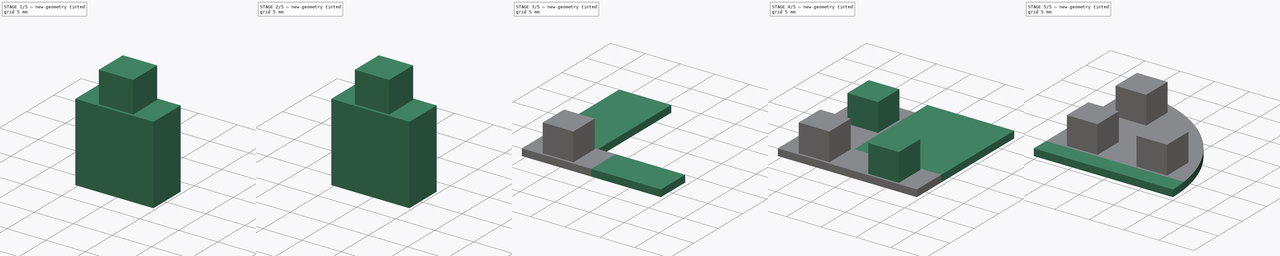
[diagram: build sequence overview — one tinted view per stage of 5, left to right]
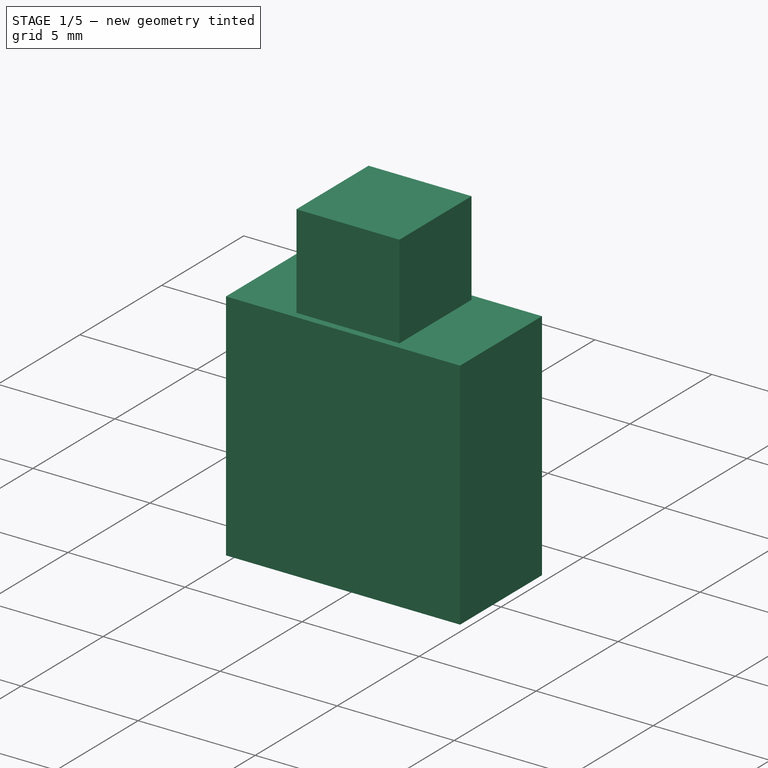
[diagram: stage 1 of 5 — iso view after this stage's code; geometry added in this stage tinted green]
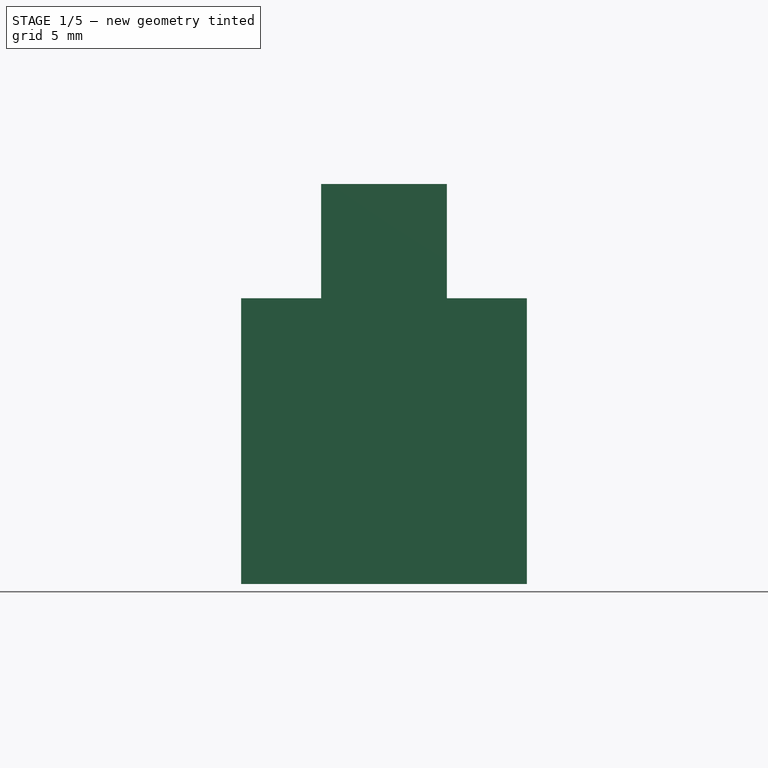
[diagram: stage 1 of 5 — front view after this stage's code; geometry added in this stage tinted green]
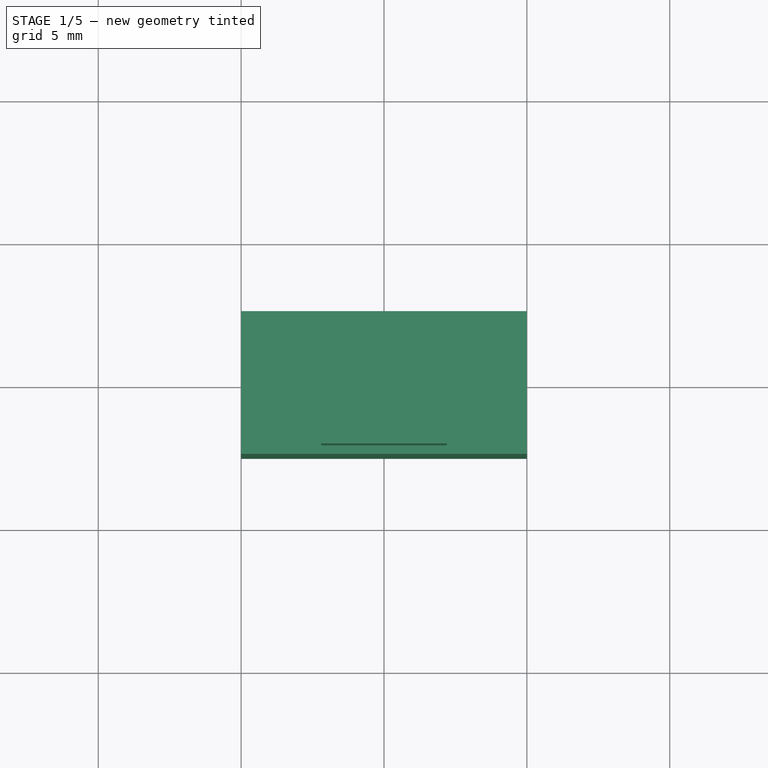
[diagram: stage 1 of 5 — top view after this stage's code; geometry added in this stage tinted green]
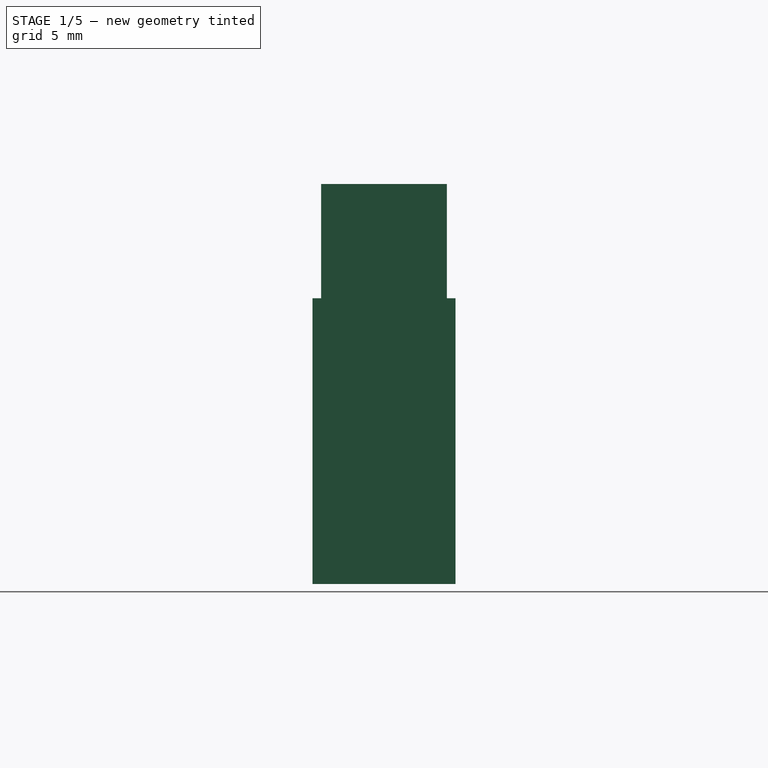
[diagram: stage 1 of 5 — right view after this stage's code; geometry added in this stage tinted green]
FCSTD DOCUMENT  (FreeCAD 0.18.4R)
Label: door-v1
License: All rights reserved
LicenseURL: http://en.wikipedia.org/wiki/All_rights_reserved
objects: PartDesign::Pad×11, PartDesign::Pocket×11, Sketcher::SketchObject×5, Part::Box×1, PartDesign::FeatureBase×1, PartDesign::Body×1
note: 52 computed .brp shape members not serialized (recipe doc carries the construction recipe); baked Part::Feature solids carry a one-line shape summary decoded from their .brp

FEATURE [Part::Box] Box  label="Cube"
  AttacherType = Attacher::AttachEngine3D
  Height = 10
  Length = 10
  Width = 10
FEATURE [PartDesign::FeatureBase] BaseFeature
  BaseFeature = -> Box
FEATURE [Sketcher::SketchObject] Sketch
  MapMode = 5
  Placement = pos=(0,0,10) rot=(0,0,1;0rad)
  Support = -> [BaseFeature]
  sketch-geometry (4):
    g0: LineSegment StartX=2.8 StartY=2.8 StartZ=0 EndX=7.2 EndY=2.8 EndZ=0
    g1: LineSegment StartX=7.2 StartY=2.8 StartZ=0 EndX=7.2 EndY=7.2 EndZ=0
    g2: LineSegment StartX=7.2 StartY=7.2 StartZ=0 EndX=2.8 EndY=7.2 EndZ=0
    g3: LineSegment StartX=2.8 StartY=7.2 StartZ=0 EndX=2.8 EndY=2.8 EndZ=0
  constraints (12):
    c: Coincident(g0,g1)
    c: Coincident(g1,g2)
    c: Coincident(g2,g3)
    c: Coincident(g3,g0)
    c: Horizontal(g0)
    c: Horizontal(g2)
    c: Vertical(g1)
    c: Vertical(g3)
    c: DistanceX(g2,g2) = 4.4
    c: DistanceY(g3,g3) = 4.4
    c: DistanceX(g-1,g0) = 2.8
    c: DistanceY(g-1,g0) = 2.8
FEATURE [PartDesign::Pad] Pad
  BaseFeature = -> BaseFeature
  Length = 4
  Length2 = 100
  Profile = -> Sketch
  Type = 0
FEATURE [PartDesign::Pocket] Pocket
  BaseFeature = -> Pad
  Length = 2.5
  Length2 = 100
  Profile = -> Pad [Face4]
  Type = 0
FEATURE [PartDesign::Pocket] Pocket001
  BaseFeature = -> Pocket
  Length = 2.5
  Length2 = 100
  Profile = -> Pocket [Face5]
  Type = 0
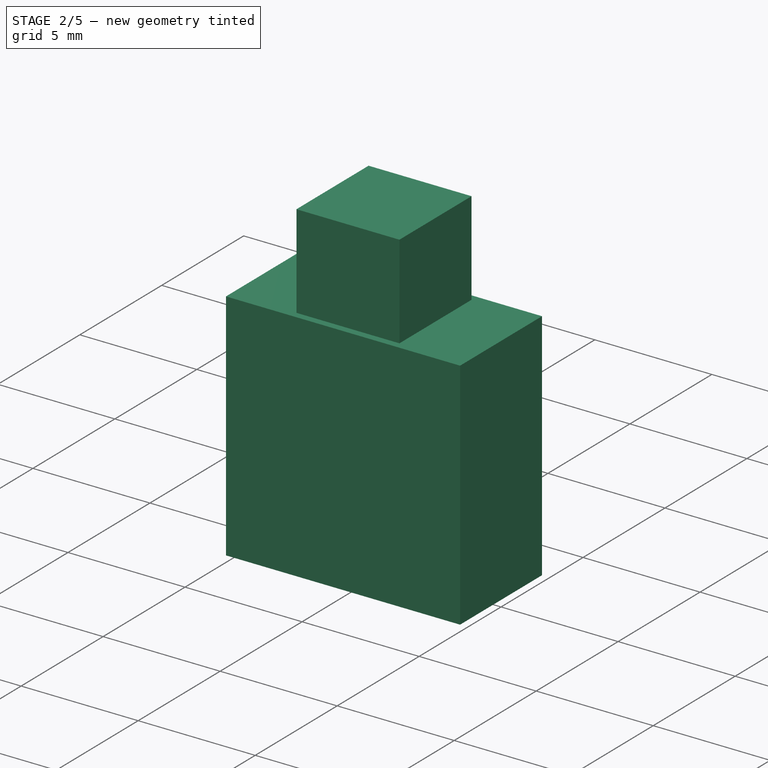
[diagram: stage 2 of 5 — iso view after this stage's code; geometry added in this stage tinted green]
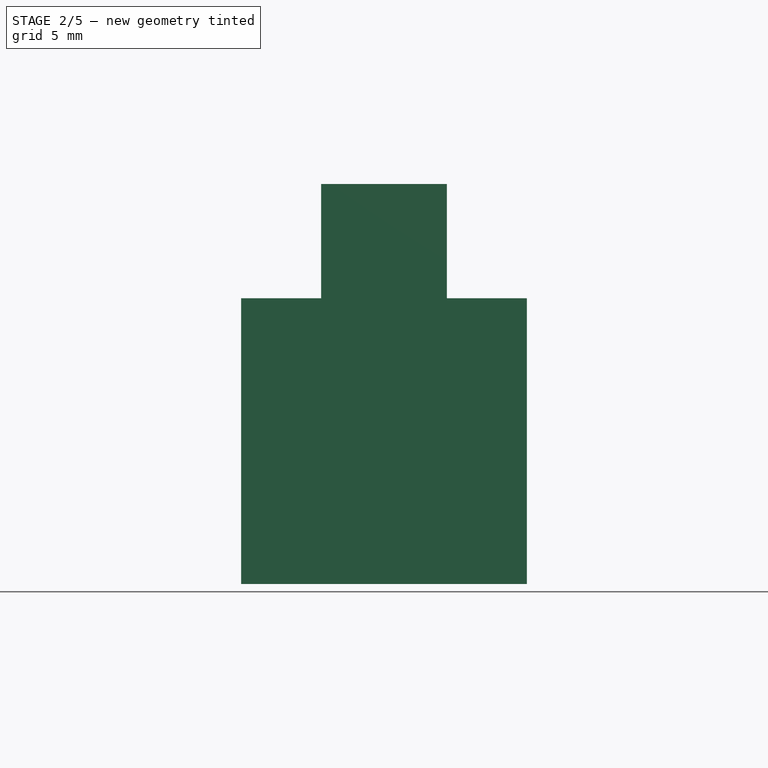
[diagram: stage 2 of 5 — front view after this stage's code; geometry added in this stage tinted green]
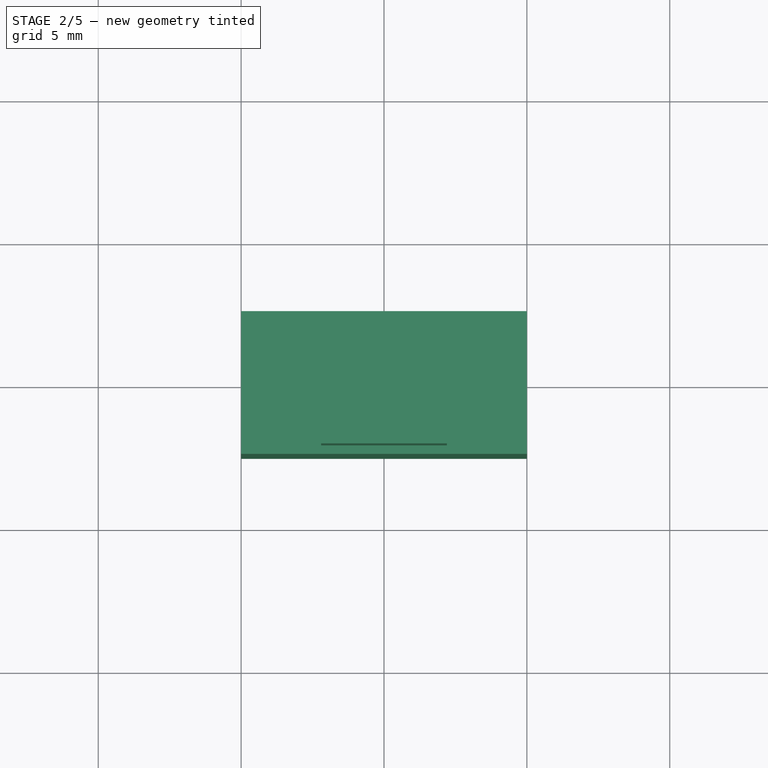
[diagram: stage 2 of 5 — top view after this stage's code; geometry added in this stage tinted green]
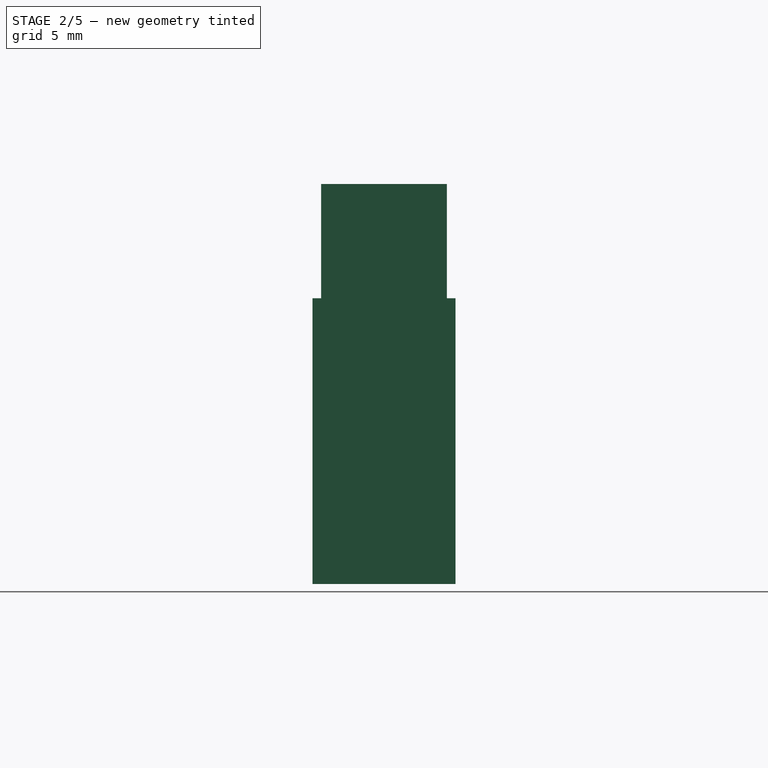
[diagram: stage 2 of 5 — right view after this stage's code; geometry added in this stage tinted green]
FEATURE [Sketcher::SketchObject] Sketch001
  ExternalGeometry = -> [Pocket001]
  MapMode = 5
  Placement = pos=(0,7.5,0) rot=(0,0.707107,0.707107;3.14159rad)
  Support = -> [Pocket001]
  sketch-geometry (4):
    g0: LineSegment StartX=-7.5 StartY=10 StartZ=0 EndX=-2.5 EndY=10 EndZ=0
    g1: LineSegment StartX=-2.5 StartY=10 StartZ=0 EndX=-2.5 EndY=0 EndZ=0
    g2: LineSegment StartX=-2.5 StartY=0 StartZ=0 EndX=-7.5 EndY=0 EndZ=0
    g3: LineSegment StartX=-7.5 StartY=0 StartZ=0 EndX=-7.5 EndY=10 EndZ=0
  constraints (12):
    c: Coincident(g0,g1)
    c: Coincident(g1,g2)
    c: Coincident(g2,g3)
    c: Coincident(g3,g0)
    c: Horizontal(g0)
    c: Horizontal(g2)
    c: Vertical(g1)
    c: Vertical(g3)
    c: DistanceX(g0,g0) = 5
    c: DistanceX(g-3,g0) = 2.5
    c: DistanceY(g0,g-3) = 0
    c: DistanceY(g-4,g2) = 0
FEATURE [PartDesign::Pad] Pad001
  BaseFeature = -> Pocket001
  Length = 10
  Length2 = 100
  Profile = -> Sketch001
  Type = 0
FEATURE [Sketcher::SketchObject] Sketch002
  ExternalGeometry = -> [Pad001]
  MapMode = 5
  Placement = pos=(0,2.2e-15,10) rot=(0,0,1;0rad)
  Support = -> [Pad001]
  sketch-geometry (4):
    g0: LineSegment StartX=2.8 StartY=14.7 StartZ=0 EndX=7.2 EndY=14.7 EndZ=0
    g1: LineSegment StartX=7.2 StartY=14.7 StartZ=0 EndX=7.2 EndY=10.3 EndZ=0
    g2: LineSegment StartX=7.2 StartY=10.3 StartZ=0 EndX=2.8 EndY=10.3 EndZ=0
    g3: LineSegment StartX=2.8 StartY=10.3 StartZ=0 EndX=2.8 EndY=14.7 EndZ=0
  constraints (12):
    c: Coincident(g0,g1)
    c: Coincident(g1,g2)
    c: Coincident(g2,g3)
    c: Coincident(g3,g0)
    c: Horizontal(g0)
    c: Horizontal(g2)
    c: Vertical(g1)
    c: Vertical(g3)
    c: DistanceX(g-3,g0) = 0.3
    c: DistanceX(g0,g-3) = 0.3
    c: DistanceY(g3,g3) = 4.4
    c: DistanceY(g0,g-3) = 2.8
FEATURE [PartDesign::Pad] Pad002
  BaseFeature = -> Pad001
  Length = 4
  Length2 = 100
  Profile = -> Sketch002
  Type = 0
FEATURE [PartDesign::Pocket] Pocket002
  BaseFeature = -> Pad002
  Length = 5
  Length2 = 100
  Profile = -> Pad002 [Face22]
  Type = 0
FEATURE [PartDesign::Pocket] Pocket003
  BaseFeature = -> Pocket002
  Length = 7.5
  Length2 = 100
  Profile = -> Pocket002 [Face16]
  Type = 0
FEATURE [PartDesign::Pocket] Pocket004
  BaseFeature = -> Pocket003
  Length = 2.5
  Length2 = 100
  Profile = -> Pocket003 [Face15]
  Type = 0
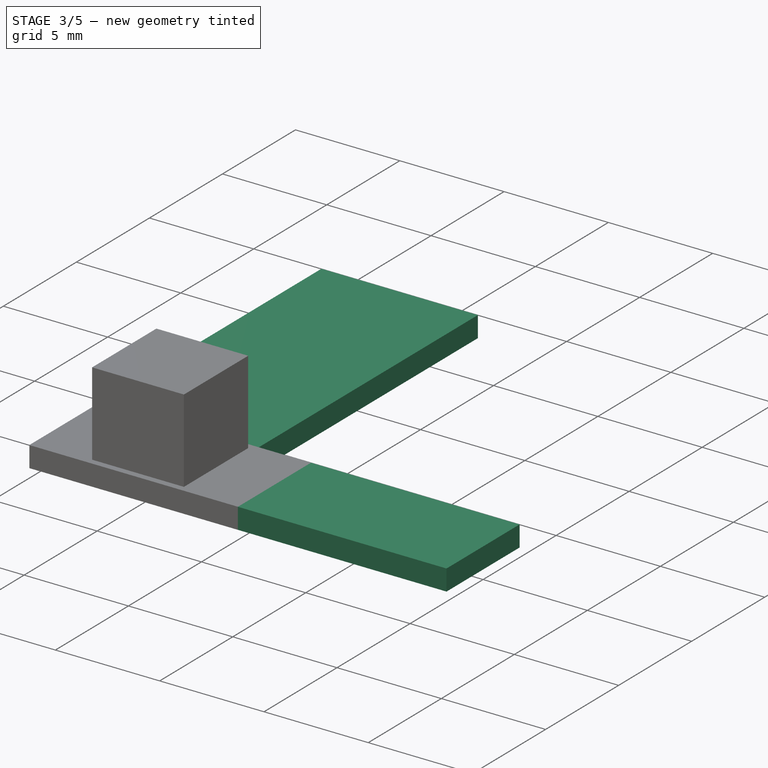
[diagram: stage 3 of 5 — iso view after this stage's code; geometry added in this stage tinted green]
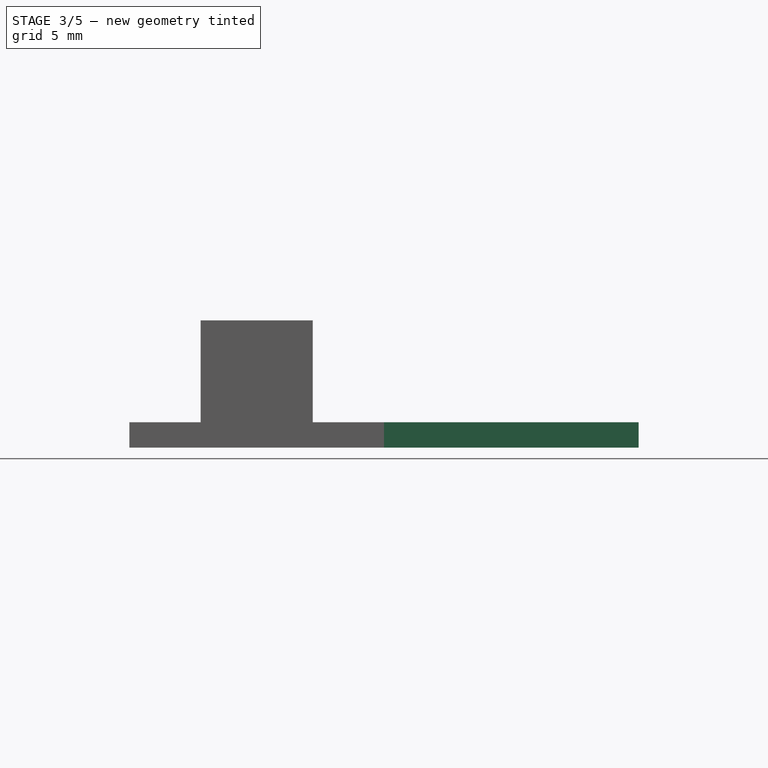
[diagram: stage 3 of 5 — front view after this stage's code; geometry added in this stage tinted green]
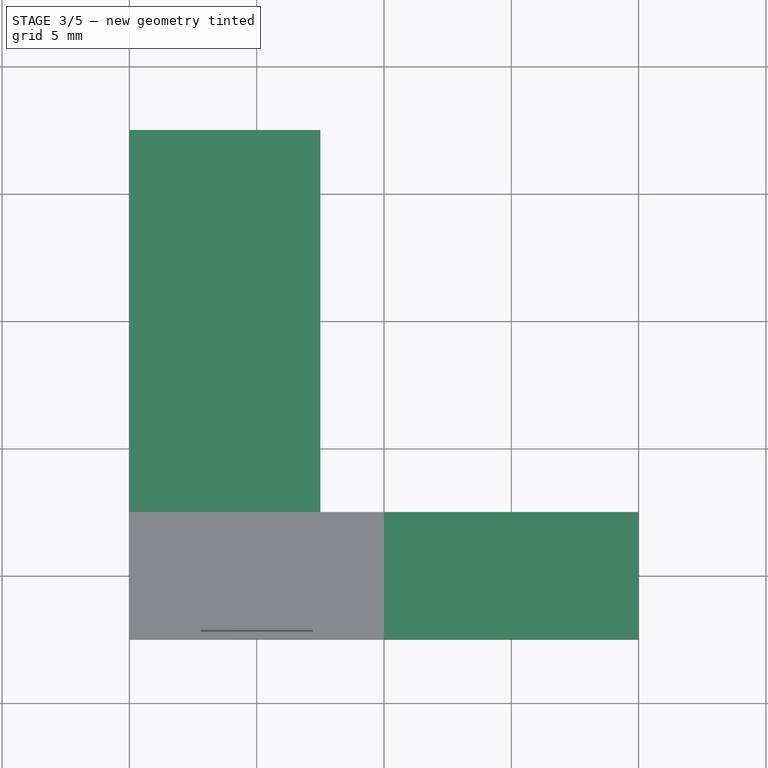
[diagram: stage 3 of 5 — top view after this stage's code; geometry added in this stage tinted green]
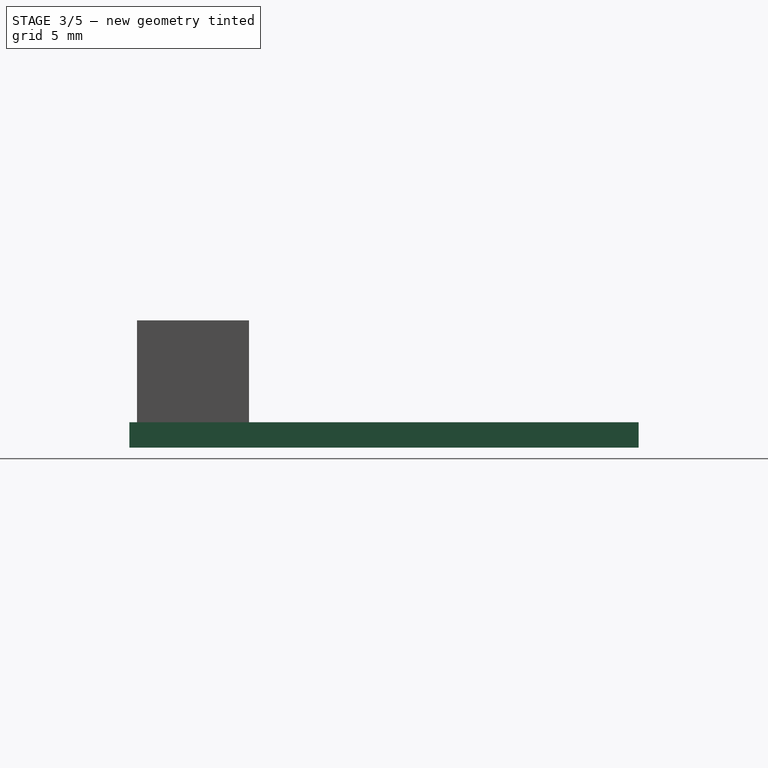
[diagram: stage 3 of 5 — right view after this stage's code; geometry added in this stage tinted green]
FEATURE [PartDesign::Pocket] Pocket005
  BaseFeature = -> Pocket004
  Length = 9
  Length2 = 100
  Profile = -> Pocket004 [Face4]
  Type = 0
FEATURE [PartDesign::Pad] Pad003
  BaseFeature = -> Pocket005
  Length = 10
  Length2 = 100
  Profile = -> Pocket005 [Face8]
  Type = 0
FEATURE [PartDesign::Pad] Pad004
  BaseFeature = -> Pad003
  Length = 15
  Length2 = 100
  Profile = -> Pad003 [Face3]
  Type = 0
FEATURE [PartDesign::Pad] Pad005
  BaseFeature = -> Pad004
  Length = 15
  Length2 = 100
  Profile = -> Pad004 [Face7]
  Type = 0
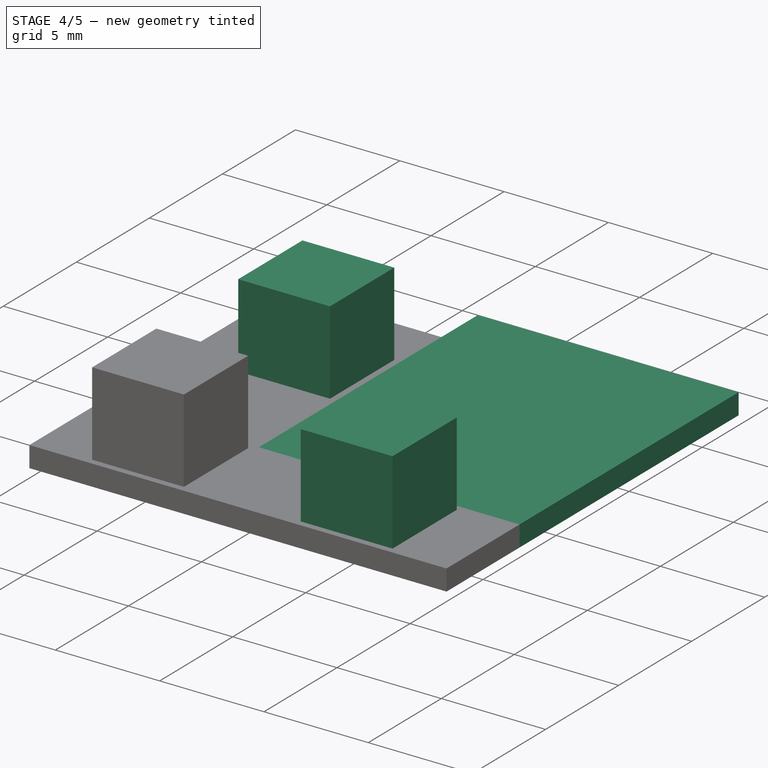
[diagram: stage 4 of 5 — iso view after this stage's code; geometry added in this stage tinted green]
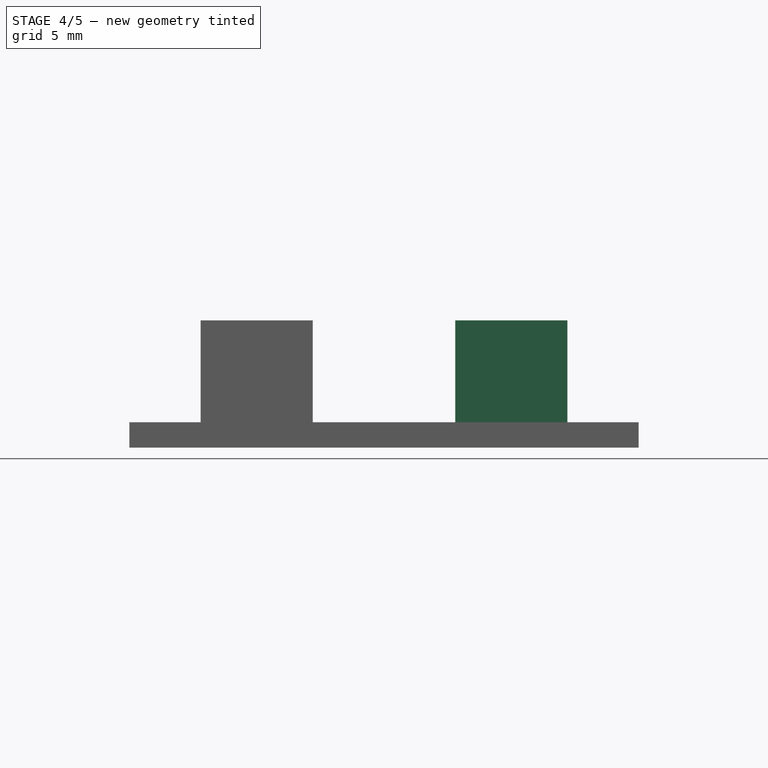
[diagram: stage 4 of 5 — front view after this stage's code; geometry added in this stage tinted green]
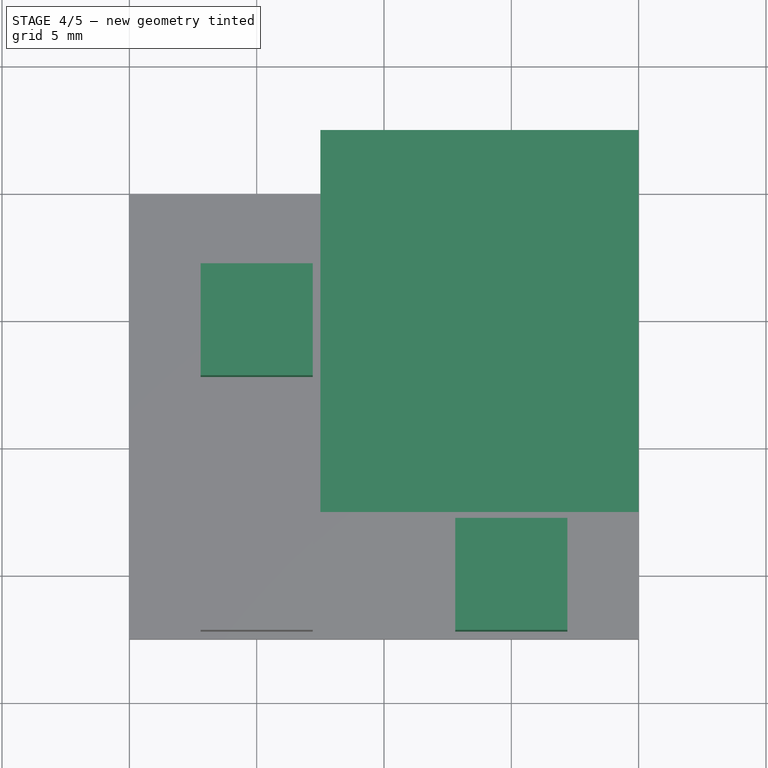
[diagram: stage 4 of 5 — top view after this stage's code; geometry added in this stage tinted green]
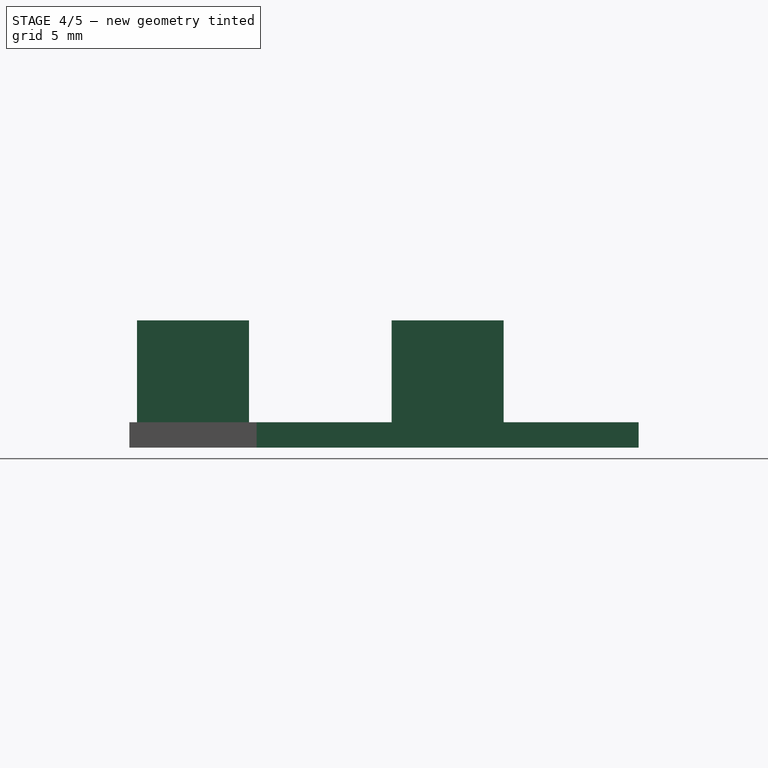
[diagram: stage 4 of 5 — right view after this stage's code; geometry added in this stage tinted green]
FEATURE [PartDesign::Pad] Pad006
  BaseFeature = -> Pad005
  Length = 15
  Length2 = 100
  Profile = -> Pad005 [Face8]
  Type = 0
FEATURE [PartDesign::Pad] Pad007
  BaseFeature = -> Pad006
  Length = 15
  Length2 = 100
  Profile = -> Pad006 [Face23]
  Type = 0
FEATURE [Sketcher::SketchObject] Sketch003
  ExternalGeometry = -> [Pad007]
  MapMode = 5
  Placement = pos=(0,0,10) rot=(0,0,1;0rad)
  Support = -> [Pad007]
  sketch-geometry (8):
    g0: LineSegment StartX=2.8 StartY=17.2 StartZ=0 EndX=7.2 EndY=17.2 EndZ=0
    g1: LineSegment StartX=7.2 StartY=17.2 StartZ=0 EndX=7.2 EndY=12.8 EndZ=0
    g2: LineSegment StartX=7.2 StartY=12.8 StartZ=0 EndX=2.8 EndY=12.8 EndZ=0
    g3: LineSegment StartX=2.8 StartY=12.8 StartZ=0 EndX=2.8 EndY=17.2 EndZ=0
    g4: LineSegment StartX=12.8 StartY=7.2 StartZ=0 EndX=17.2 EndY=7.2 EndZ=0
    g5: LineSegment StartX=17.2 StartY=7.2 StartZ=0 EndX=17.2 EndY=2.8 EndZ=0
    g6: LineSegment StartX=17.2 StartY=2.8 StartZ=0 EndX=12.8 EndY=2.8 EndZ=0
    g7: LineSegment StartX=12.8 StartY=2.8 StartZ=0 EndX=12.8 EndY=7.2 EndZ=0
  constraints (24):
    c: Coincident(g0,g1)
    c: Coincident(g1,g2)
    c: Coincident(g2,g3)
    c: Coincident(g3,g0)
    c: Horizontal(g0)
    c: Horizontal(g2)
    c: Vertical(g1)
    c: Vertical(g3)
    c: Coincident(g4,g5)
    c: Coincident(g5,g6)
    c: Coincident(g6,g7)
    c: Coincident(g7,g4)
    c: Horizontal(g4)
    c: Horizontal(g6)
    c: Vertical(g5)
    c: Vertical(g7)
    c: DistanceX(g-3,g0) = 0.3
    c: DistanceX(g1,g-3) = 0.3
    c: DistanceY(g1,g1) = 4.4
    c: DistanceY(g-3,g2) = 5.3
    c: DistanceY(g-4,g6) = 0.3
    c: DistanceY(g4,g-4) = 0.3
    c: DistanceX(g4,g4) = 4.4
    c: DistanceX(g-4,g4) = 2.8
FEATURE [PartDesign::Pad] Pad008
  BaseFeature = -> Pad007
  Length = 4
  Length2 = 100
  Profile = -> Sketch003
  Type = 0
FEATURE [PartDesign::Pocket] Pocket006
  BaseFeature = -> Pad008
  Length = 2.5
  Length2 = 100
  Profile = -> Pad008 [Face15]
  Type = 0
FEATURE [PartDesign::Pocket] Pocket007
  BaseFeature = -> Pocket006
  Length = 2.5
  Length2 = 100
  Profile = -> Pocket006 [Face20]
  Type = 0
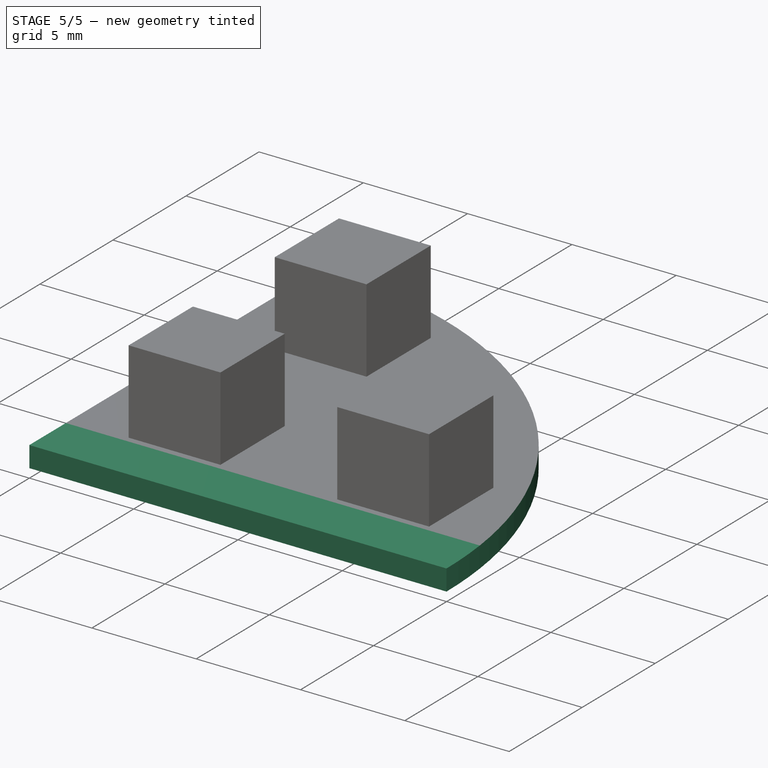
[diagram: stage 5 of 5 — iso view after this stage's code; geometry added in this stage tinted green]
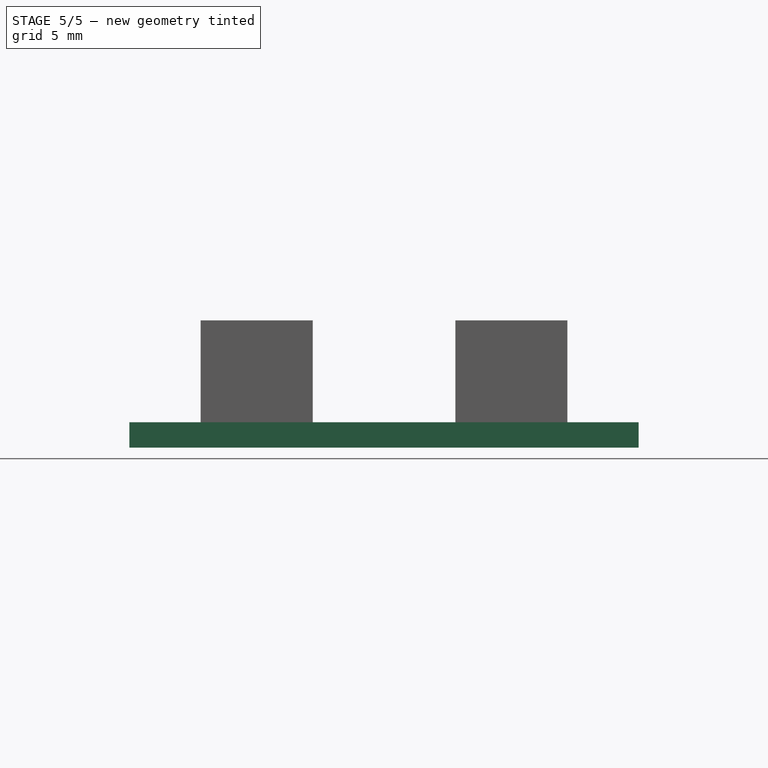
[diagram: stage 5 of 5 — front view after this stage's code; geometry added in this stage tinted green]
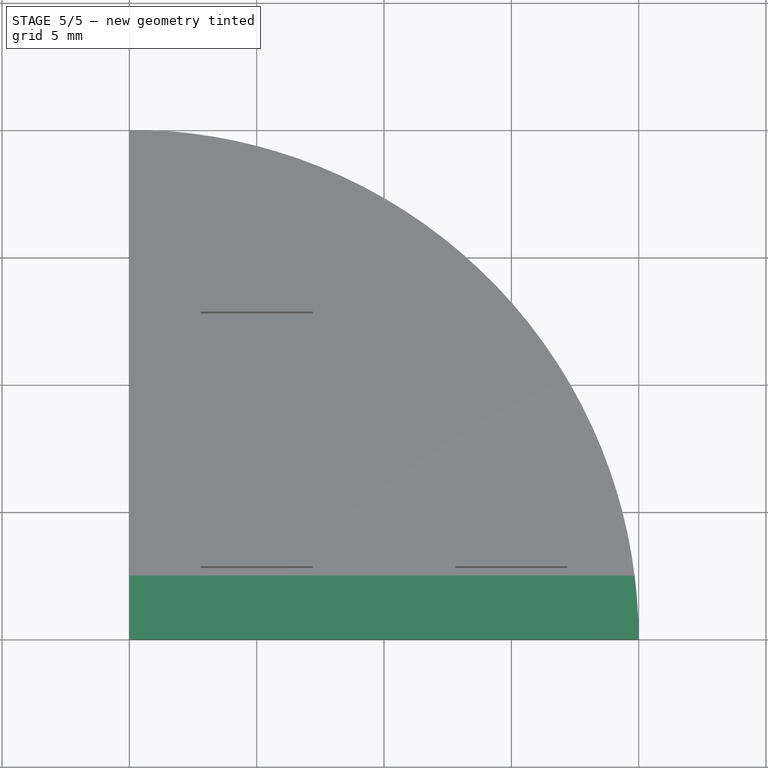
[diagram: stage 5 of 5 — top view after this stage's code; geometry added in this stage tinted green]
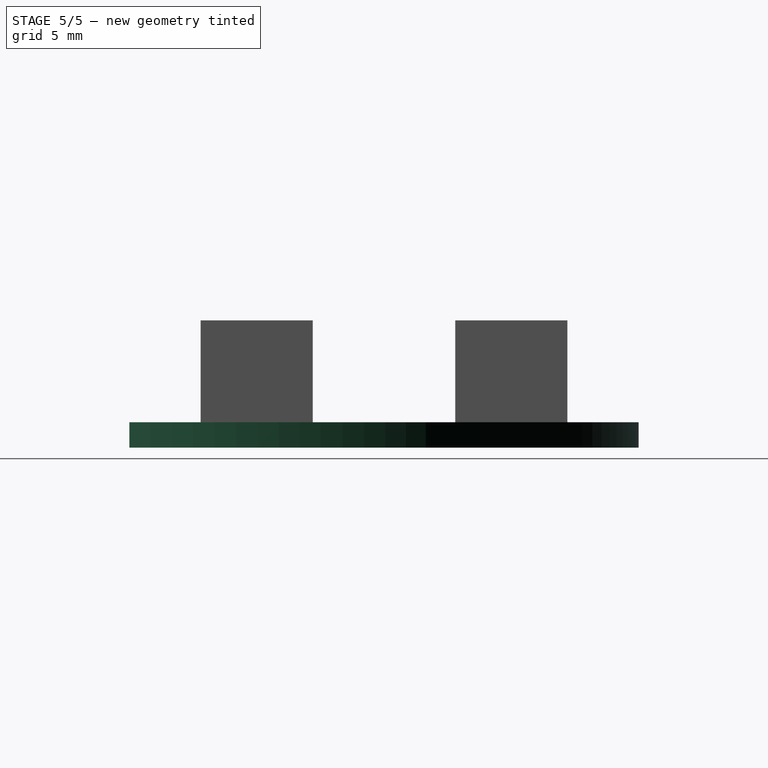
[diagram: stage 5 of 5 — right view after this stage's code; geometry added in this stage tinted green]
FEATURE [PartDesign::Pocket] Pocket008
  BaseFeature = -> Pocket007
  Length = 2.5
  Length2 = 100
  Profile = -> Pocket007 [Face27]
  Type = 0
FEATURE [PartDesign::Pocket] Pocket009
  BaseFeature = -> Pocket008
  Length = 2.5
  Length2 = 100
  Profile = -> Pocket008 [Face37]
  Type = 0
FEATURE [PartDesign::Pad] Pad009
  BaseFeature = -> Pocket009
  Length = 2.5
  Length2 = 100
  Profile = -> Pocket009 [Face5]
  Type = 0
FEATURE [PartDesign::Pad] Pad010
  BaseFeature = -> Pad009
  Length = 2.5
  Length2 = 100
  Profile = -> Pad009 [Face29]
  Type = 0
FEATURE [Sketcher::SketchObject] Sketch004
  ExternalGeometry = -> [Pad010]
  MapMode = 5
  Placement = pos=(0,0,9) rot=(1,0,0;3.14159rad)
  Support = -> [Pad010]
  sketch-geometry (5):
    g0: ArcOfCircle CenterX=-0.020851 CenterY=0.000176 CenterZ=0 NormalX=0 NormalY=0 NormalZ=1 AngleXU=0 Radius=20.0187 StartAngle=4.66915 EndAngle=6.28319
    g1: LineSegment StartX=19.9979 StartY=0.000176 StartZ=0 EndX=29.314 EndY=-0.170935 EndZ=0
    g2: LineSegment StartX=29.314 StartY=-0.170935 StartZ=0 EndX=32.978 EndY=-26.0447 EndZ=0
    g3: LineSegment StartX=32.978 StartY=-26.0447 StartZ=0 EndX=-1.07429 EndY=-29.6192 EndZ=0
    g4: LineSegment StartX=-1.07429 StartY=-29.6192 StartZ=0 EndX=-0.886172 EndY=-19.9998 EndZ=0
  constraints (5):
    c: Coincident(g1,g2)
    c: Coincident(g2,g3)
    c: Coincident(g3,g4)
    c: Coincident(g4,g0)
    c: Coincident(g0,g1)
FEATURE [PartDesign::Pocket] Pocket010
  BaseFeature = -> Pad010
  Length = 5
  Length2 = 100
  Profile = -> Sketch004
  Type = 0
FEATURE [PartDesign::Body] Body
  BaseFeature = -> Box
  Group = -> [BaseFeature,Sketch,Pad,Pocket,Pocket001,Sketch001,Pad001,Sketch002,Pad002,Pocket002,Pocket003,Pocket004,Pocket005,Pad003,Pad004,Pad005,Pad006,Pad007,Sketch003,Pad008,Pocket006,Pocket007,Pocket008,Pocket009,Pad009,Pad010,Sketch004,Pocket010]
  Origin = -> Origin
  Tip = -> Pocket010
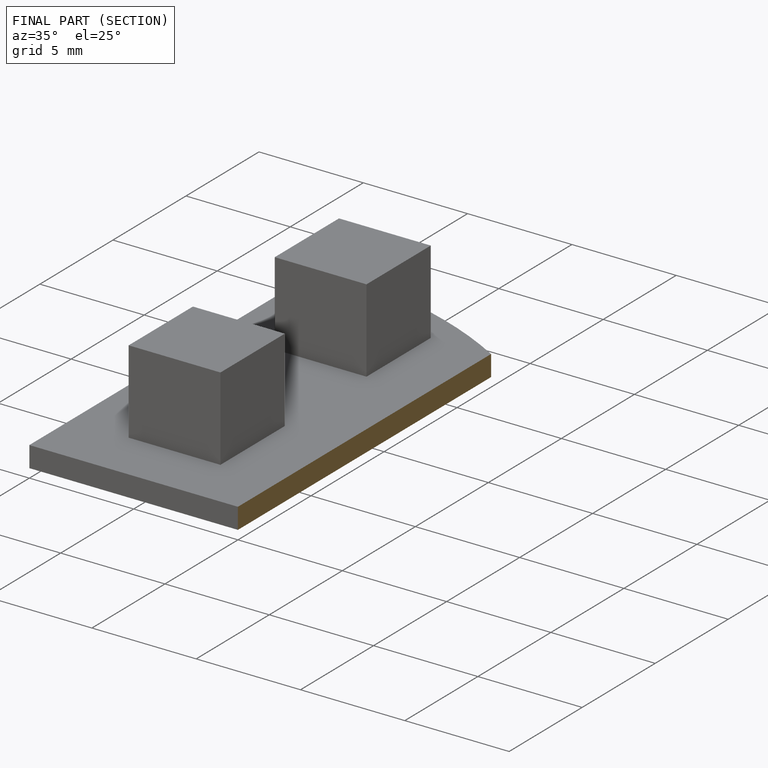
[diagram: finished part — half-section view (interior)]
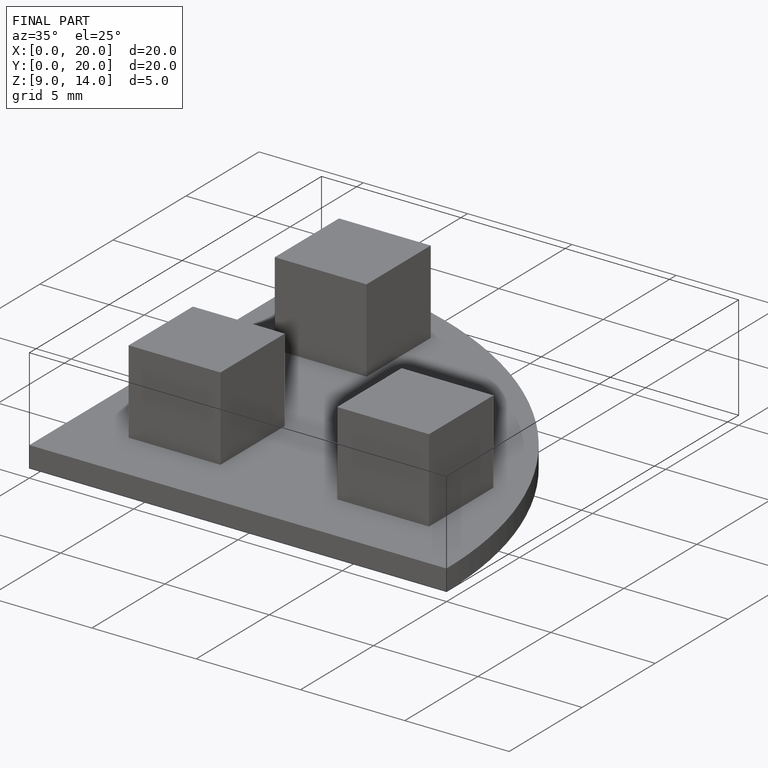
[diagram: finished part — iso view with bounding-box wireframe]
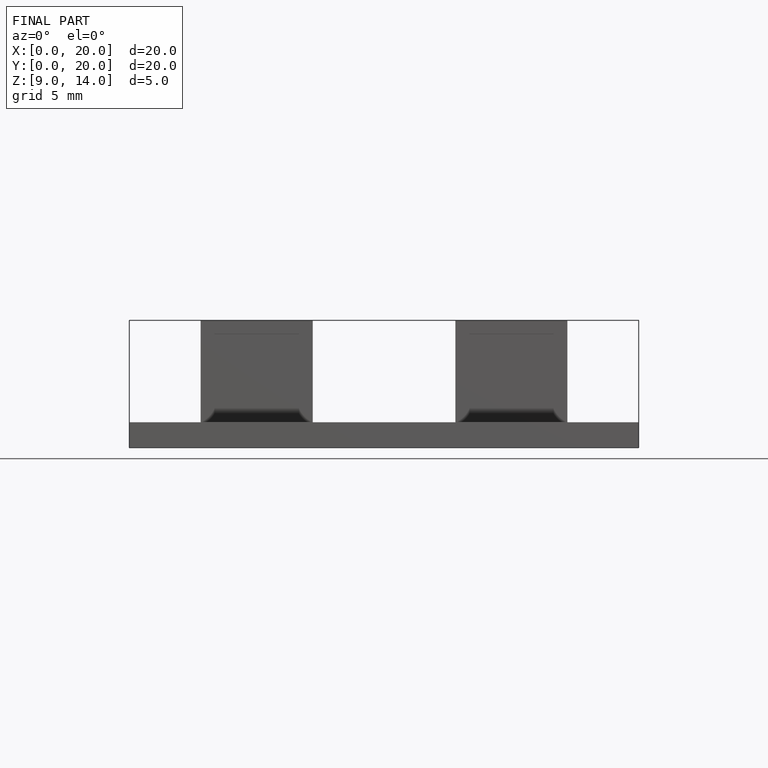
[diagram: finished part — front view with bounding-box wireframe]
